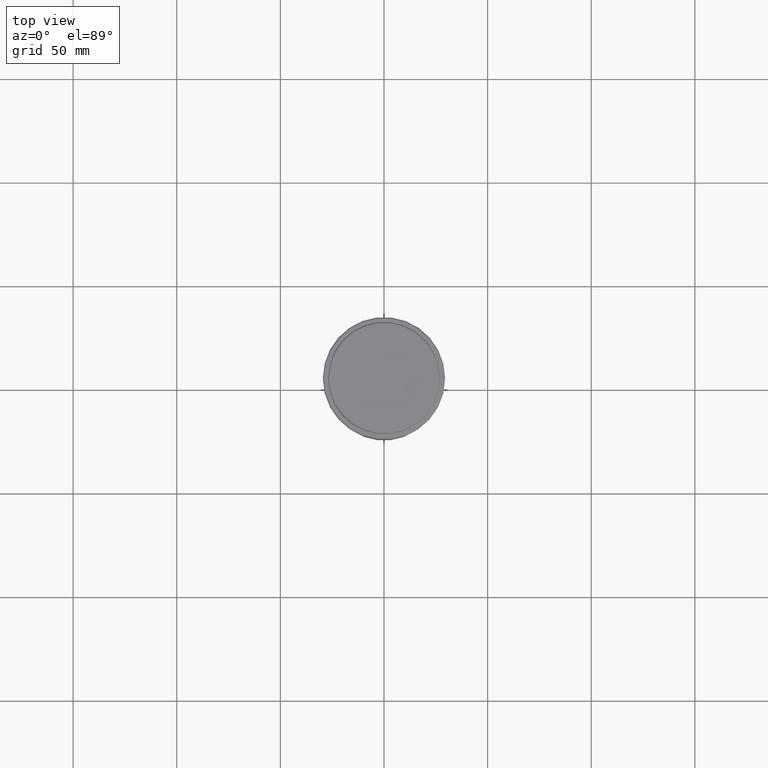
[diagram: clean part render]
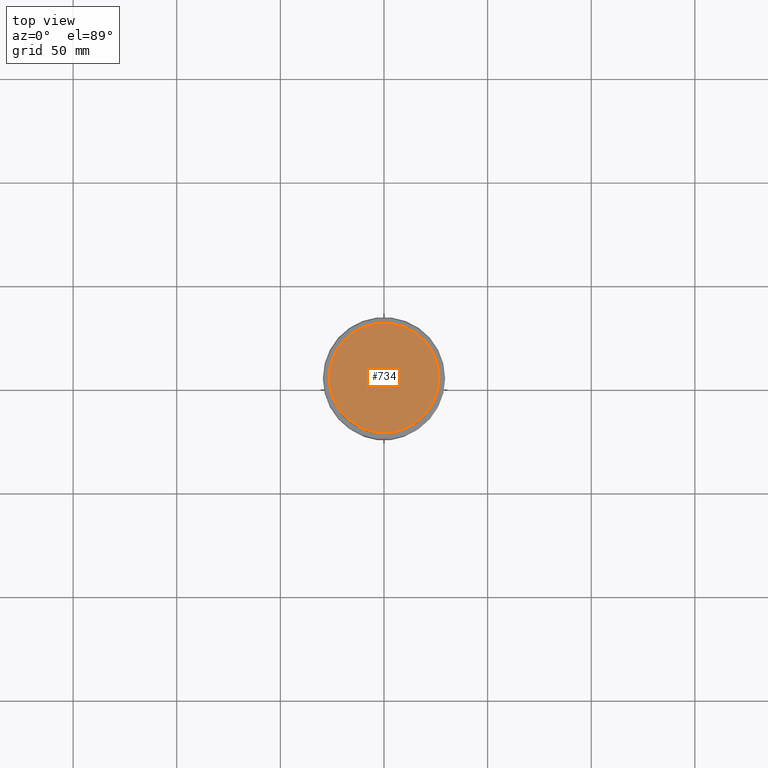
[diagram: same view with one face highlighted and labeled with its STEP entity id]
A machine part, top view. The second image highlights one B-rep face of the part: STEP entity #734.
In plain terms, the highlighted planar face has unit normal (0, -0, 1).
Its self-contained STEP definition (entity closure, byte-faithful):
#14 = CARTESIAN_POINT ( 'NONE',  ( 0.000000000000000000, 0.000000000000000000, 0.000000000000000000 ) ) ;
#55 = CARTESIAN_POINT ( 'NONE',  ( 0.000000000000000000, 0.000000000000000000, 0.000000000000000000 ) ) ;
#160 = CIRCLE ( 'NONE', #873, 26.50000000000007816 ) ;
#170 = ORIENTED_EDGE ( 'NONE', *, *, #910, .T. ) ;
#193 = DIRECTION ( 'NONE',  ( 1.000000000000000000, 0.000000000000000000, 0.000000000000000000 ) ) ;
#248 = EDGE_CURVE ( 'NONE', #1175, #1203, #458, .T. ) ;
#283 = DIRECTION ( 'NONE',  ( 1.000000000000000000, 0.000000000000000000, 0.000000000000000000 ) ) ;
#311 = FACE_OUTER_BOUND ( 'NONE', #965, .T. ) ;
#381 = ORIENTED_EDGE ( 'NONE', *, *, #248, .T. ) ;
#384 = CARTESIAN_POINT ( 'NONE',  ( -26.50000000000007816, 0.000000000000000000, 0.000000000000000000 ) ) ;
#437 = AXIS2_PLACEMENT_3D ( 'NONE', #55, #704, #283 ) ;
#458 = CIRCLE ( 'NONE', #437, 26.50000000000007816 ) ;
#480 = DIRECTION ( 'NONE',  ( 1.000000000000000000, 0.000000000000000000, 0.000000000000000000 ) ) ;
#510 = AXIS2_PLACEMENT_3D ( 'NONE', #743, #1177, #193 ) ;
#704 = DIRECTION ( 'NONE',  ( -0.000000000000000000, -0.000000000000000000, 1.000000000000000000 ) ) ;
#734 = ADVANCED_FACE ( 'NONE', ( #311 ), #941, .T. ) ;
#743 = CARTESIAN_POINT ( 'NONE',  ( 0.000000000000000000, 0.000000000000000000, 0.000000000000000000 ) ) ;
#873 = AXIS2_PLACEMENT_3D ( 'NONE', #14, #1124, #480 ) ;
#910 = EDGE_CURVE ( 'NONE', #1203, #1175, #160, .T. ) ;
#941 = PLANE ( 'NONE',  #510 ) ;
#965 = EDGE_LOOP ( 'NONE', ( #381, #170 ) ) ;
#1124 = DIRECTION ( 'NONE',  ( -0.000000000000000000, -0.000000000000000000, 1.000000000000000000 ) ) ;
#1175 = VERTEX_POINT ( 'NONE', #384 ) ;
#1177 = DIRECTION ( 'NONE',  ( 0.000000000000000000, -0.000000000000000000, 1.000000000000000000 ) ) ;
#1203 = VERTEX_POINT ( 'NONE', #1268 ) ;
#1268 = CARTESIAN_POINT ( 'NONE',  ( 26.50000000000007816, 3.275930187719175074E-15, 0.000000000000000000 ) ) ;